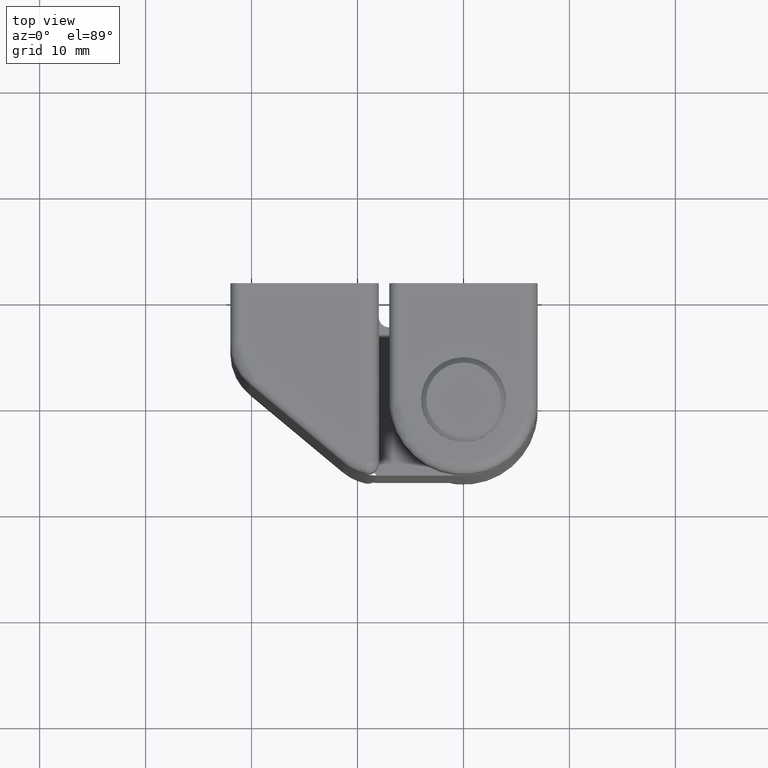
[diagram: clean part render]
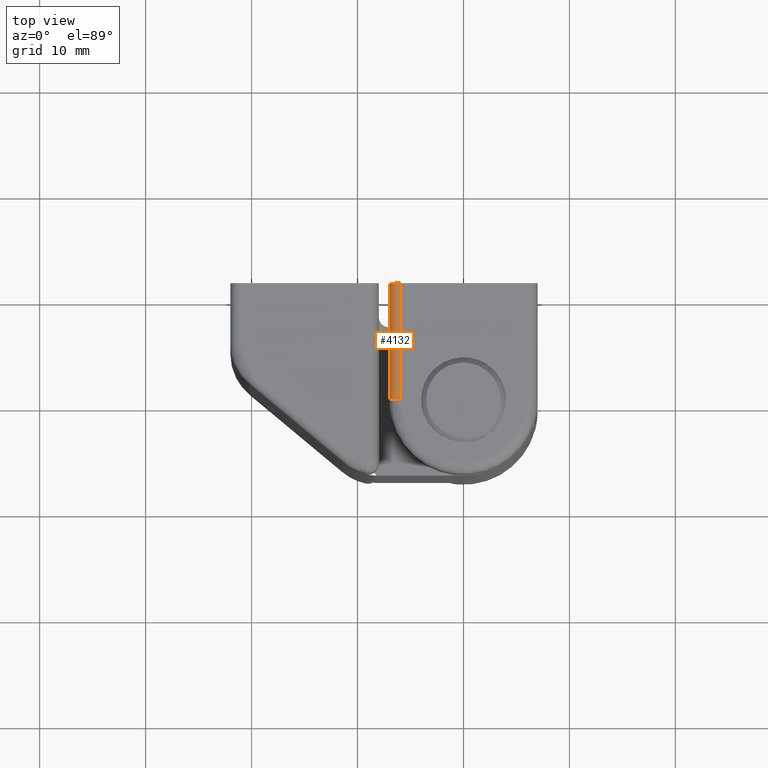
[diagram: same view with one face highlighted and labeled with its STEP entity id]
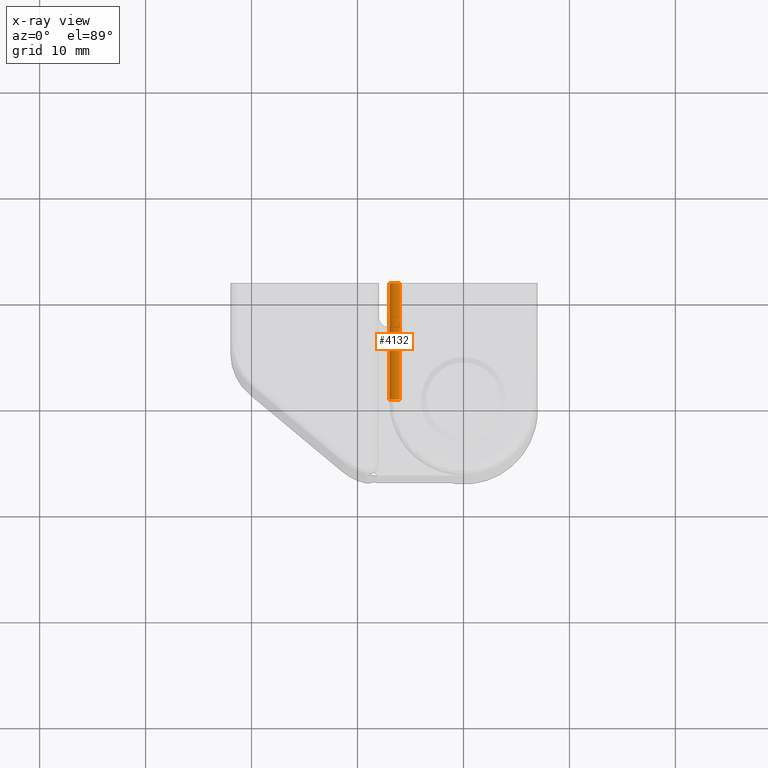
[diagram: x-ray of the same camera — body ghosted, the highlighted face saturated]
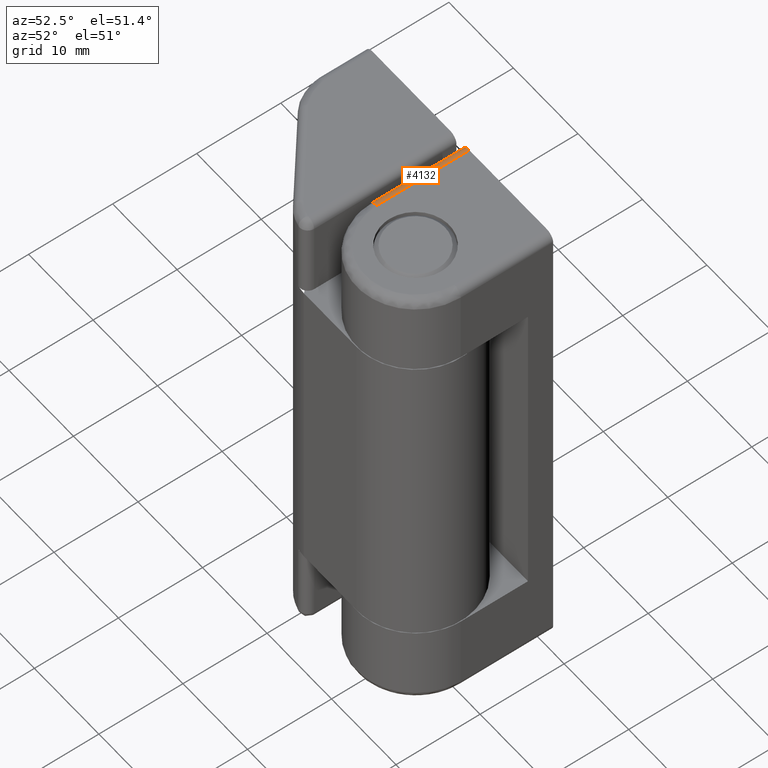
[diagram: same view with one face highlighted and labeled with its STEP entity id]
A machine part, top view. The second image highlights one B-rep face of the part: STEP entity #4132.
The next image is the same camera in x-ray: the body ghosted, the highlighted face saturated — about 0% of this face is hidden behind the body in this view.
A second angle (auxiliary view) of the same face is appended — the face is thin or edge-on in the first view.
In plain terms, the highlighted face is a freeform B-spline surface patch.
Its self-contained STEP definition (entity closure, byte-faithful):
#4072=CARTESIAN_POINT('',(-5.956380612634664,-0.274999373863133,59.999048221581859));
#4073=CARTESIAN_POINT('',(-5.956380612634664,11.281874984346580,59.999048221581859));
#4074=CARTESIAN_POINT('',(-7.076060264459039,-0.274999373863133,60.047934490935980));
#4075=CARTESIAN_POINT('',(-7.076060264459039,11.281874984346580,60.047934490935980));
#4076=CARTESIAN_POINT('',(-6.997542913231912,-0.274999373863133,58.929941907956483));
#4077=CARTESIAN_POINT('',(-6.997542913231912,11.281874984346583,58.929941907956483));
#4085=(BOUNDED_SURFACE()B_SPLINE_SURFACE(1,2,((#4072,#4074,#4076),(#4073,#4075,#4077)),.UNSPECIFIED.,.F.,.F.,.U.)B_SPLINE_SURFACE_WITH_KNOTS((2,2),(3,3),(0.0,11.556874358209710),(0.0,0.994386594966985),.UNSPECIFIED.)GEOMETRIC_REPRESENTATION_ITEM()RATIONAL_B_SPLINE_SURFACE(((1.0,0.664513898535122,0.996233561259061),(1.0,0.664513898535122,0.996233561259061)))REPRESENTATION_ITEM('')SURFACE());
#4086=CARTESIAN_POINT('',(-7.0,0.000000610865237,59.0));
#4087=VERTEX_POINT('',#4086);
#4088=CARTESIAN_POINT('',(-6.0,0.000000610865237,60.0));
#4089=VERTEX_POINT('',#4088);
#4090=CARTESIAN_POINT('',(-6.999999999999996,0.000000610865237,59.0));
#4091=CARTESIAN_POINT('',(-6.999999999999989,0.000000698131699,60.0));
#4092=CARTESIAN_POINT('',(-5.999999999999992,0.000000610865237,59.999999999999993));
#4100=(BOUNDED_CURVE()B_SPLINE_CURVE(2,(#4090,#4091,#4092),.UNSPECIFIED.,.F.,.U.)CURVE()GEOMETRIC_REPRESENTATION_ITEM()QUASI_UNIFORM_CURVE()RATIONAL_B_SPLINE_CURVE((1.0,0.707106781186548,1.0))REPRESENTATION_ITEM(''));
#4101=EDGE_CURVE('',#4087,#4089,#4100,.T.);
#4102=ORIENTED_EDGE('',*,*,#4101,.T.);
#4103=CARTESIAN_POINT('',(-6.0,11.0,60.0));
#4104=VERTEX_POINT('',#4103);
#4105=CARTESIAN_POINT('',(-6.0,11.0,60.0));
#4106=CARTESIAN_POINT('',(-6.0,0.000000610865237,60.0));
#4107=QUASI_UNIFORM_CURVE('',1,(#4105,#4106),.UNSPECIFIED.,.F.,.U.);
#4108=EDGE_CURVE('',#4104,#4089,#4107,.T.);
#4109=ORIENTED_EDGE('',*,*,#4108,.F.);
#4110=CARTESIAN_POINT('',(-7.0,11.0,59.0));
#4111=VERTEX_POINT('',#4110);
#4112=CARTESIAN_POINT('',(-7.0,11.0,59.0));
#4113=CARTESIAN_POINT('',(-6.999999999999999,11.0,60.0));
#4114=CARTESIAN_POINT('',(-6.0,11.0,60.0));
#4122=(BOUNDED_CURVE()B_SPLINE_CURVE(2,(#4112,#4113,#4114),.UNSPECIFIED.,.F.,.U.)CURVE()GEOMETRIC_REPRESENTATION_ITEM()QUASI_UNIFORM_CURVE()RATIONAL_B_SPLINE_CURVE((1.0,0.707106781186548,1.0))REPRESENTATION_ITEM(''));
#4123=EDGE_CURVE('',#4111,#4104,#4122,.T.);
#4124=ORIENTED_EDGE('',*,*,#4123,.F.);
#4125=CARTESIAN_POINT('',(-7.0,0.000000610865237,59.0));
#4126=CARTESIAN_POINT('',(-7.0,11.0,59.0));
#4127=QUASI_UNIFORM_CURVE('',1,(#4125,#4126),.UNSPECIFIED.,.F.,.U.);
#4128=EDGE_CURVE('',#4087,#4111,#4127,.T.);
#4129=ORIENTED_EDGE('',*,*,#4128,.F.);
#4130=EDGE_LOOP('',(#4102,#4109,#4124,#4129));
#4131=FACE_OUTER_BOUND('',#4130,.T.);
#4132=ADVANCED_FACE('',(#4131),#4085,.T.);